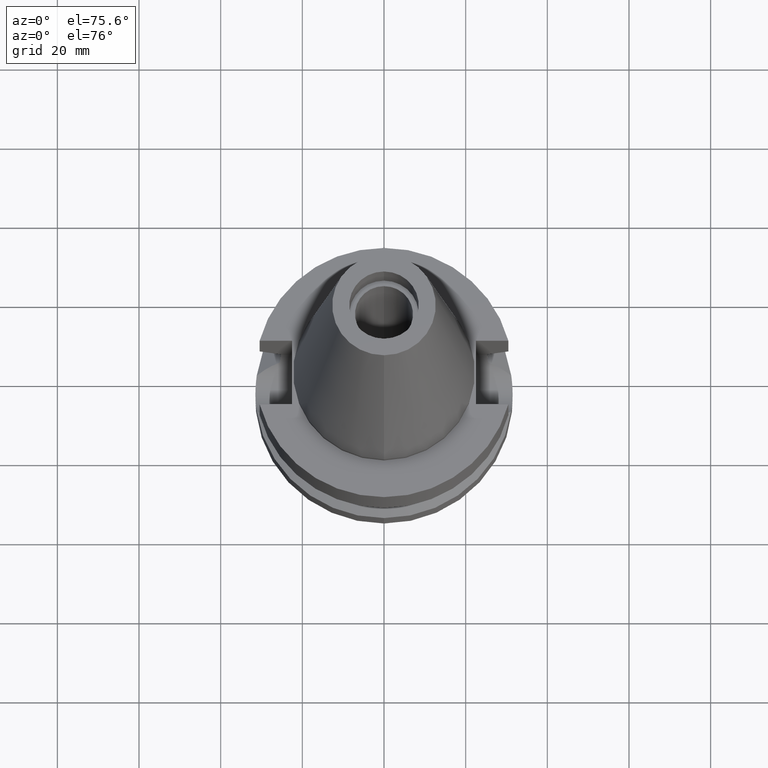
[diagram: clean part render]
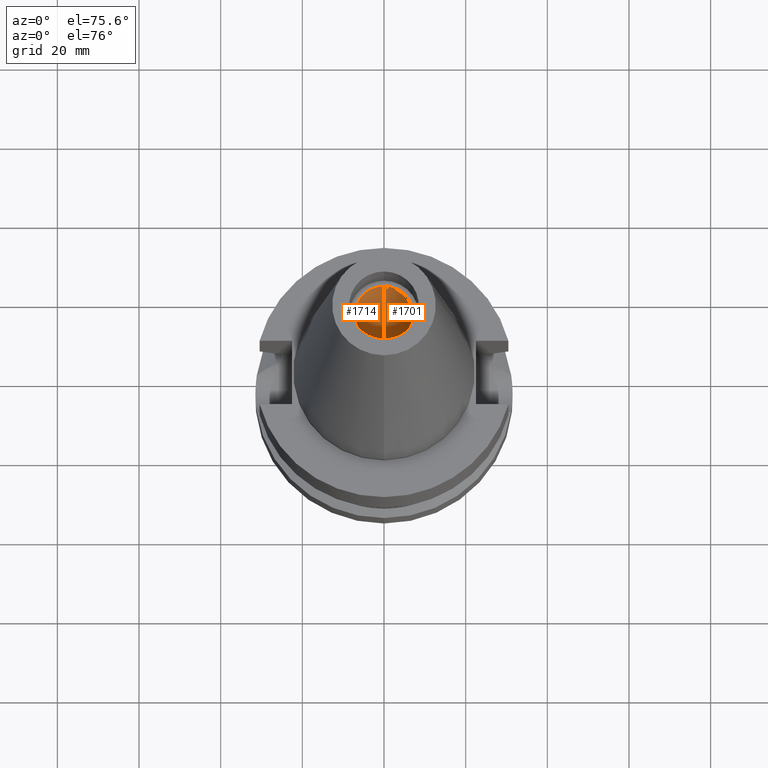
[diagram: same view with one multi-face feature highlighted, each face labeled with its STEP entity id]
A machine part, auxiliary view. The highlighted faces form ONE feature: a constant-radius fillet chain: 2 tangent blend faces with common blend radius 7.1 mm. The faces share edges in the B-rep.
Their STEP definitions:
[1] entity #1714 (Cylinder):
#836=CARTESIAN_POINT('',(0.E0,2.120720862083E-14,-5.684341886081E-14));
#837=DIRECTION('',(0.E0,0.E0,-1.E0));
#838=DIRECTION('',(0.E0,-1.E0,0.E0));
#839=AXIS2_PLACEMENT_3D('',#836,#837,#838);
#851=DIRECTION('',(0.E0,0.E0,1.E0));
#852=VECTOR('',#851,5.64E1);
#853=CARTESIAN_POINT('',(0.E0,7.1E0,-5.684341886081E-14));
#854=LINE('',#853,#852);
#866=DIRECTION('',(0.E0,0.E0,1.E0));
#867=VECTOR('',#866,5.64E1);
#868=CARTESIAN_POINT('',(0.E0,-7.1E0,-5.684341886081E-14));
#869=LINE('',#868,#867);
#897=CARTESIAN_POINT('',(0.E0,2.120720862083E-14,5.64E1));
#898=DIRECTION('',(0.E0,0.E0,1.E0));
#899=DIRECTION('',(0.E0,1.E0,0.E0));
#900=AXIS2_PLACEMENT_3D('',#897,#898,#899);
#931=CARTESIAN_POINT('',(0.E0,-7.1E0,5.64E1));
#932=CARTESIAN_POINT('',(0.E0,7.1E0,5.64E1));
#933=VERTEX_POINT('',#931);
#934=VERTEX_POINT('',#932);
#935=CARTESIAN_POINT('',(0.E0,7.1E0,-5.684341886081E-14));
#936=VERTEX_POINT('',#935);
#937=CARTESIAN_POINT('',(0.E0,-7.1E0,-5.684341886081E-14));
#938=VERTEX_POINT('',#937);
#1702=CARTESIAN_POINT('',(0.E0,2.120720862083E-14,7.317E1));
#1703=DIRECTION('',(0.E0,0.E0,-1.E0));
#1704=DIRECTION('',(0.E0,-1.E0,0.E0));
#1705=AXIS2_PLACEMENT_3D('',#1702,#1703,#1704);
#1706=CYLINDRICAL_SURFACE('',#1705,7.1E0);
#1707=ORIENTED_EDGE('',*,*,#1692,.F.);
#1708=ORIENTED_EDGE('',*,*,#1669,.F.);
#1709=ORIENTED_EDGE('',*,*,#1696,.T.);
#1711=ORIENTED_EDGE('',*,*,#1710,.F.);
#1712=EDGE_LOOP('',(#1707,#1708,#1709,#1711));
#1713=FACE_OUTER_BOUND('',#1712,.F.);
#840=CIRCLE('',#839,7.1E0);
#901=CIRCLE('',#900,7.1E0);
#1669=EDGE_CURVE('',#938,#936,#840,.T.);
#1692=EDGE_CURVE('',#936,#934,#854,.T.);
#1696=EDGE_CURVE('',#938,#933,#869,.T.);
#1710=EDGE_CURVE('',#934,#933,#901,.T.);
#1714=ADVANCED_FACE('',(#1713),#1706,.F.);
[2] entity #1701 (Cylinder):
#851=DIRECTION('',(0.E0,0.E0,1.E0));
#852=VECTOR('',#851,5.64E1);
#853=CARTESIAN_POINT('',(0.E0,7.1E0,-5.684341886081E-14));
#854=LINE('',#853,#852);
#858=CARTESIAN_POINT('',(0.E0,2.120720862083E-14,-5.684341886081E-14));
#859=DIRECTION('',(0.E0,0.E0,1.E0));
#860=DIRECTION('',(0.E0,-1.E0,0.E0));
#861=AXIS2_PLACEMENT_3D('',#858,#859,#860);
#866=DIRECTION('',(0.E0,0.E0,1.E0));
#867=VECTOR('',#866,5.64E1);
#868=CARTESIAN_POINT('',(0.E0,-7.1E0,-5.684341886081E-14));
#869=LINE('',#868,#867);
#889=CARTESIAN_POINT('',(0.E0,2.120720862083E-14,5.64E1));
#890=DIRECTION('',(0.E0,0.E0,1.E0));
#891=DIRECTION('',(0.E0,-1.E0,0.E0));
#892=AXIS2_PLACEMENT_3D('',#889,#890,#891);
#931=CARTESIAN_POINT('',(0.E0,-7.1E0,5.64E1));
#932=CARTESIAN_POINT('',(0.E0,7.1E0,5.64E1));
#933=VERTEX_POINT('',#931);
#934=VERTEX_POINT('',#932);
#935=CARTESIAN_POINT('',(0.E0,7.1E0,-5.684341886081E-14));
#936=VERTEX_POINT('',#935);
#937=CARTESIAN_POINT('',(0.E0,-7.1E0,-5.684341886081E-14));
#938=VERTEX_POINT('',#937);
#1687=CARTESIAN_POINT('',(0.E0,2.120720862083E-14,7.317E1));
#1688=DIRECTION('',(0.E0,0.E0,-1.E0));
#1689=DIRECTION('',(0.E0,-1.E0,0.E0));
#1690=AXIS2_PLACEMENT_3D('',#1687,#1688,#1689);
#1691=CYLINDRICAL_SURFACE('',#1690,7.1E0);
#1693=ORIENTED_EDGE('',*,*,#1692,.T.);
#1695=ORIENTED_EDGE('',*,*,#1694,.F.);
#1697=ORIENTED_EDGE('',*,*,#1696,.F.);
#1698=ORIENTED_EDGE('',*,*,#1680,.T.);
#1699=EDGE_LOOP('',(#1693,#1695,#1697,#1698));
#1700=FACE_OUTER_BOUND('',#1699,.F.);
#862=CIRCLE('',#861,7.1E0);
#893=CIRCLE('',#892,7.1E0);
#1680=EDGE_CURVE('',#938,#936,#862,.T.);
#1692=EDGE_CURVE('',#936,#934,#854,.T.);
#1694=EDGE_CURVE('',#933,#934,#893,.T.);
#1696=EDGE_CURVE('',#938,#933,#869,.T.);
#1701=ADVANCED_FACE('',(#1700),#1691,.F.);